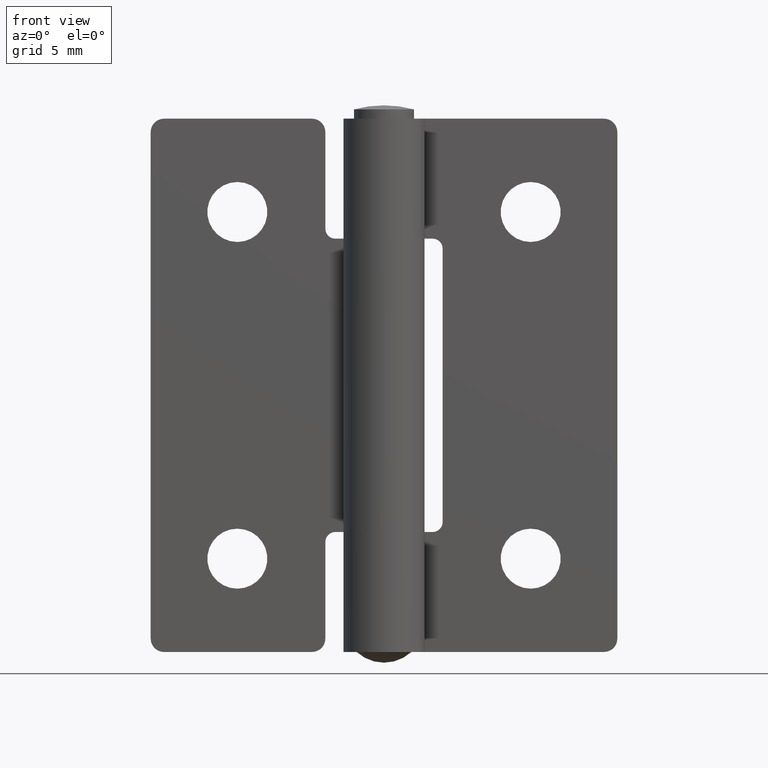
[diagram: clean part render]
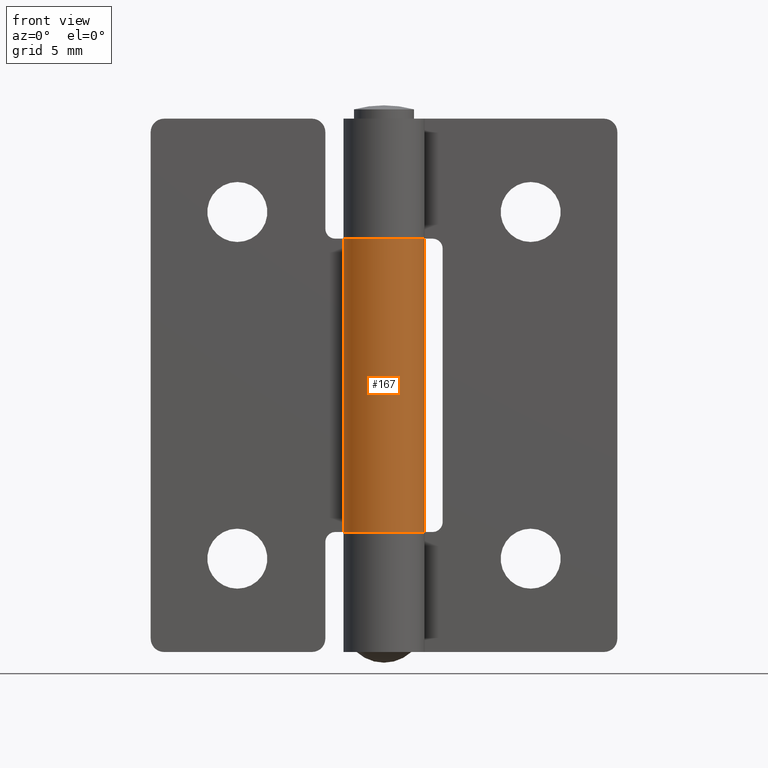
[diagram: same view with one face highlighted and labeled with its STEP entity id]
A machine part, front view. The second image highlights one B-rep face of the part: STEP entity #167.
In plain terms, the highlighted cylindrical surface (partial cylindrical patch) has radius 3.05 mm, axis along (-0, -0, -1).
Its self-contained STEP definition (entity closure, byte-faithful):
#167=ADVANCED_FACE('',(#391),#390,.T.);
#390=CYLINDRICAL_SURFACE('',#883,3.05000000000E+00);
#391=FACE_OUTER_BOUND('',#884,.T.);
#880=CARTESIAN_POINT('',(-2.27422028826E+01,0.00000000000E+00,-9.59199999630E+02));
#881=DIRECTION('',(-0.00000000000E+00,-0.00000000000E+00,-1.00000000000E+00));
#882=DIRECTION('',(-5.15038074910E-01,8.57167300702E-01,0.00000000000E+00));
#883=AXIS2_PLACEMENT_3D('',#880,#881,#882);
#884=EDGE_LOOP('',(#1163,#1164,#1165,#1166));
#1163=ORIENTED_EDGE('',*,*,#1430,.T.);
#1164=ORIENTED_EDGE('',*,*,#1431,.F.);
#1165=ORIENTED_EDGE('',*,*,#1420,.F.);
#1166=ORIENTED_EDGE('',*,*,#1432,.F.);
#1420=EDGE_CURVE('',#1823,#1809,#1830,.T.);
#1430=EDGE_CURVE('',#1894,#1895,#1896,.T.);
#1431=EDGE_CURVE('',#1809,#1895,#1902,.T.);
#1432=EDGE_CURVE('',#1894,#1823,#1908,.T.);
#1809=VERTEX_POINT('',#2681);
#1823=VERTEX_POINT('',#2690);
#1830=LINE('',#2695,#2696);
#1894=VERTEX_POINT('',#2730);
#1895=VERTEX_POINT('',#2731);
#1896=LINE('',#2732,#2733);
#1902=CIRCLE('',#2738,3.05000000000E+00);
#1908=CIRCLE('',#2742,3.05000000000E+00);
#2681=CARTESIAN_POINT('',(-2.54193087467E+01,1.46137065524E+00,3.18000003698E+01));
#2690=CARTESIAN_POINT('',(-2.54193087467E+01,1.46137065524E+00,9.80000036981E+00));
#2695=CARTESIAN_POINT('',(-2.54193087467E+01,1.46137065524E+00,9.80000036981E+00));
#2696=VECTOR('',#2697,2.20000000000E+01);
#2697=DIRECTION('',(0.00000000000E+00,0.00000000000E+00,1.00000000000E+00));
#2730=CARTESIAN_POINT('',(-2.27422028826E+01,3.05000000000E+00,9.80000036981E+00));
#2731=CARTESIAN_POINT('',(-2.27422028826E+01,3.05000000000E+00,3.18000003698E+01));
#2732=CARTESIAN_POINT('',(-2.27422028826E+01,3.05000000000E+00,9.80000036981E+00));
#2733=VECTOR('',#2734,2.20000000000E+01);
#2734=DIRECTION('',(0.00000000000E+00,0.00000000000E+00,1.00000000000E+00));
#2735=CARTESIAN_POINT('',(-2.27422028826E+01,0.00000000000E+00,3.18000003698E+01));
#2736=DIRECTION('',(0.00000000000E+00,0.00000000000E+00,1.00000000000E+00));
#2737=DIRECTION('',(-8.77739627599E-01,4.79137919750E-01,0.00000000000E+00));
#2738=AXIS2_PLACEMENT_3D('',#2735,#2736,#2737);
#2739=CARTESIAN_POINT('',(-2.27422028826E+01,0.00000000000E+00,9.80000036981E+00));
#2740=DIRECTION('',(0.00000000000E+00,0.00000000000E+00,-1.00000000000E+00));
#2741=DIRECTION('',(-1.83690953073E-16,1.00000000000E+00,0.00000000000E+00));
#2742=AXIS2_PLACEMENT_3D('',#2739,#2740,#2741);